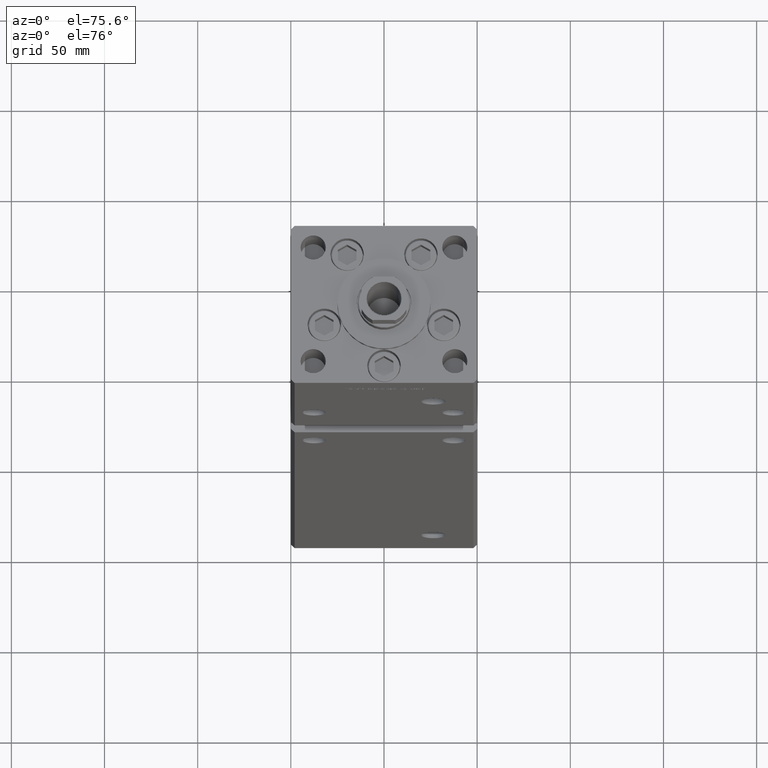
[diagram: clean part render]
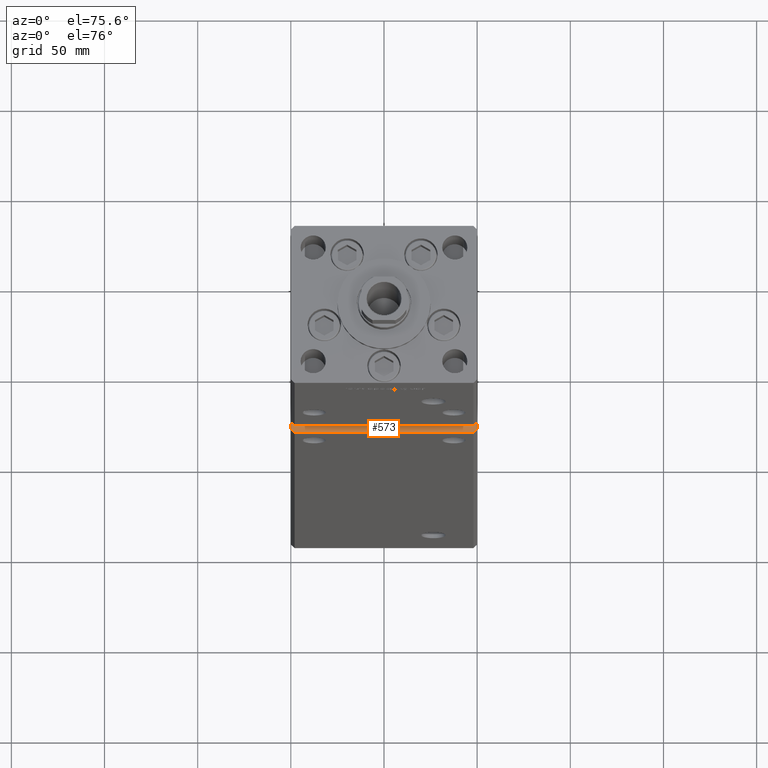
[diagram: same view with one face highlighted and labeled with its STEP entity id]
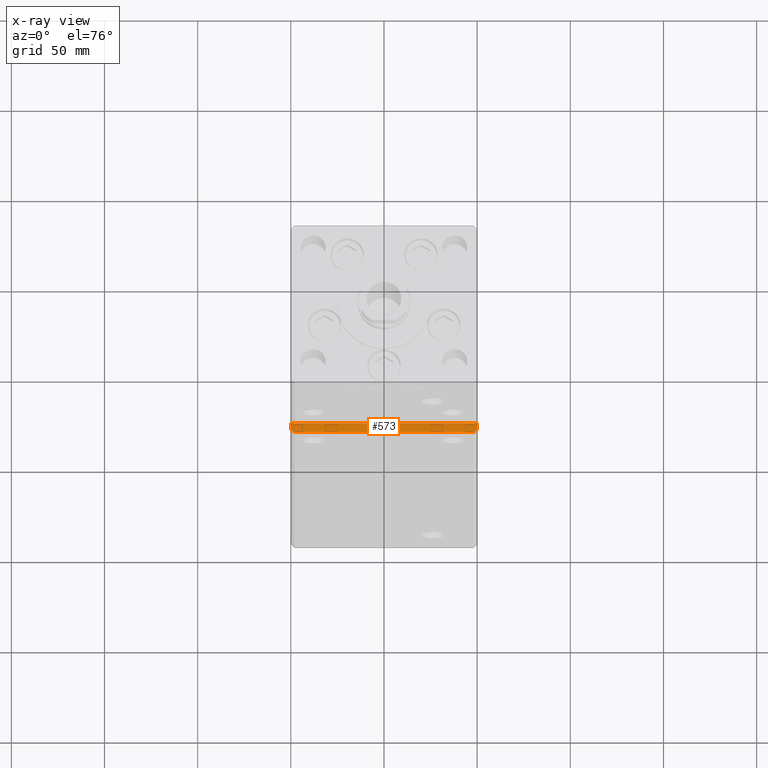
[diagram: x-ray of the same camera — body ghosted, the highlighted face saturated]
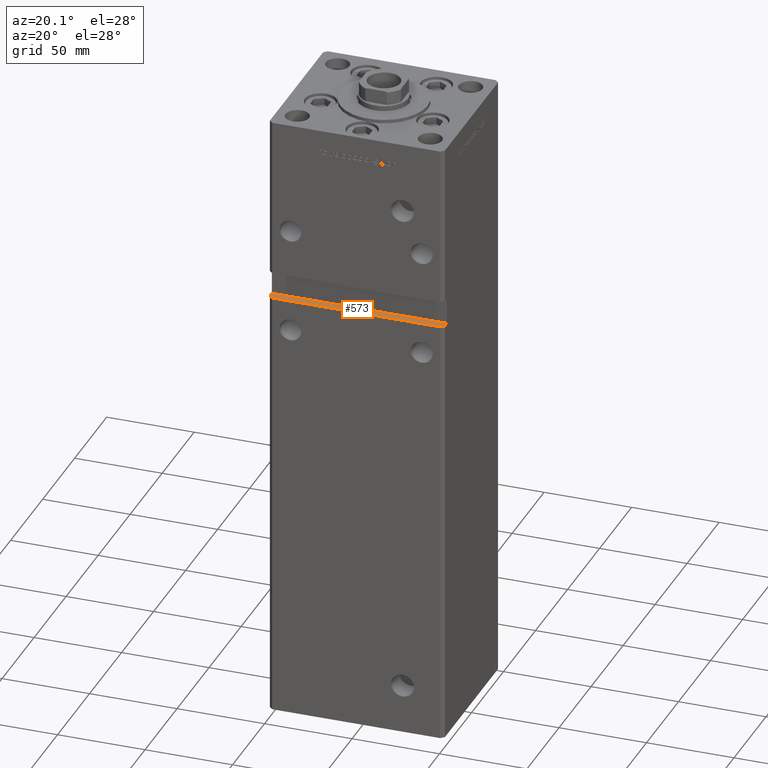
[diagram: same view with one face highlighted and labeled with its STEP entity id]
A machine part, auxiliary view. The second image highlights one B-rep face of the part: STEP entity #573.
The next image is the same camera in x-ray: the body ghosted, the highlighted face saturated — about 0% of this face is hidden behind the body in this view.
A second angle (auxiliary view) of the same face is appended — the face is thin or edge-on in the first view.
In plain terms, the highlighted planar face has unit normal (0, 0, -1).
Its self-contained STEP definition (entity closure, byte-faithful):
#573 = ADVANCED_FACE ( 'NONE', ( #8127 ), #36057, .F. ) ;
#617 = CARTESIAN_POINT ( 'NONE',  ( -47.99999999999998579, -43.50000000000000000, 230.9999999999999716 ) ) ;
#1837 = DIRECTION ( 'NONE',  ( 1.000000000000000000, 0.000000000000000000, 0.000000000000000000 ) ) ;
#5011 = VERTEX_POINT ( 'NONE', #45429 ) ;
#5103 = DIRECTION ( 'NONE',  ( -0.000000000000000000, -1.000000000000000000, -0.000000000000000000 ) ) ;
#5254 = CARTESIAN_POINT ( 'NONE',  ( -49.99999999999998579, -41.49999999999999289, 230.9999999999999716 ) ) ;
#5459 = CARTESIAN_POINT ( 'NONE',  ( 49.99999999999998579, -38.49999999999999289, 230.9999999999999716 ) ) ;
#7912 = EDGE_CURVE ( 'NONE', #24514, #42226, #29790, .T. ) ;
#8095 = VECTOR ( 'NONE', #10469, 1000.000000000000000 ) ;
#8127 = FACE_OUTER_BOUND ( 'NONE', #31992, .T. ) ;
#8277 = LINE ( 'NONE', #37270, #14954 ) ;
#8639 = VECTOR ( 'NONE', #36937, 1000.000000000000114 ) ;
#9829 = DIRECTION ( 'NONE',  ( -0.7071067811865474617, 0.7071067811865474617, 0.000000000000000000 ) ) ;
#10469 = DIRECTION ( 'NONE',  ( -0.000000000000000000, -1.000000000000000000, -0.000000000000000000 ) ) ;
#11462 = ORIENTED_EDGE ( 'NONE', *, *, #29077, .F. ) ;
#13437 = LINE ( 'NONE', #33311, #30257 ) ;
#13931 = ORIENTED_EDGE ( 'NONE', *, *, #39356, .T. ) ;
#14643 = ORIENTED_EDGE ( 'NONE', *, *, #7912, .T. ) ;
#14954 = VECTOR ( 'NONE', #44805, 1000.000000000000000 ) ;
#18515 = ORIENTED_EDGE ( 'NONE', *, *, #39570, .F. ) ;
#19414 = CARTESIAN_POINT ( 'NONE',  ( -49.99999999999998579, -38.50000000000000000, 230.9999999999999716 ) ) ;
#19669 = DIRECTION ( 'NONE',  ( -1.000000000000000000, 0.000000000000000000, -0.000000000000000000 ) ) ;
#20296 = LINE ( 'NONE', #24055, #8639 ) ;
#21580 = VERTEX_POINT ( 'NONE', #22185 ) ;
#22185 = CARTESIAN_POINT ( 'NONE',  ( 49.99999999999998579, -41.49999999999999289, 230.9999999999999716 ) ) ;
#24055 = CARTESIAN_POINT ( 'NONE',  ( 49.99999999999998579, -41.49999999999999289, 230.9999999999999716 ) ) ;
#24087 = EDGE_CURVE ( 'NONE', #42226, #21580, #20296, .T. ) ;
#24514 = VERTEX_POINT ( 'NONE', #617 ) ;
#24744 = DIRECTION ( 'NONE',  ( 0.000000000000000000, 0.000000000000000000, -1.000000000000000000 ) ) ;
#25194 = EDGE_CURVE ( 'NONE', #24514, #5011, #34529, .T. ) ;
#25846 = VECTOR ( 'NONE', #9829, 1000.000000000000114 ) ;
#29077 = EDGE_CURVE ( 'NONE', #30569, #21580, #13437, .T. ) ;
#29790 = LINE ( 'NONE', #49957, #43537 ) ;
#30257 = VECTOR ( 'NONE', #5103, 1000.000000000000000 ) ;
#30569 = VERTEX_POINT ( 'NONE', #5459 ) ;
#31992 = EDGE_LOOP ( 'NONE', ( #14643, #50564, #11462, #18515, #13931, #43166 ) ) ;
#33311 = CARTESIAN_POINT ( 'NONE',  ( 49.99999999999998579, -38.50000000000000000, 230.9999999999999716 ) ) ;
#34529 = LINE ( 'NONE', #5254, #25846 ) ;
#35434 = LINE ( 'NONE', #48326, #8095 ) ;
#36057 = PLANE ( 'NONE',  #39494 ) ;
#36937 = DIRECTION ( 'NONE',  ( 0.7071067811865474617, 0.7071067811865474617, 0.000000000000000000 ) ) ;
#37270 = CARTESIAN_POINT ( 'NONE',  ( -49.99999999999998579, -38.50000000000000000, 230.9999999999999716 ) ) ;
#38790 = VERTEX_POINT ( 'NONE', #50633 ) ;
#39356 = EDGE_CURVE ( 'NONE', #38790, #5011, #35434, .T. ) ;
#39494 = AXIS2_PLACEMENT_3D ( 'NONE', #19414, #24744, #19669 ) ;
#39570 = EDGE_CURVE ( 'NONE', #38790, #30569, #8277, .T. ) ;
#42226 = VERTEX_POINT ( 'NONE', #45256 ) ;
#43166 = ORIENTED_EDGE ( 'NONE', *, *, #25194, .F. ) ;
#43537 = VECTOR ( 'NONE', #1837, 1000.000000000000000 ) ;
#44805 = DIRECTION ( 'NONE',  ( 1.000000000000000000, 0.000000000000000000, 0.000000000000000000 ) ) ;
#45256 = CARTESIAN_POINT ( 'NONE',  ( 47.99999999999998579, -43.50000000000000000, 230.9999999999999716 ) ) ;
#45429 = CARTESIAN_POINT ( 'NONE',  ( -49.99999999999998579, -41.49999999999999289, 230.9999999999999716 ) ) ;
#48326 = CARTESIAN_POINT ( 'NONE',  ( -49.99999999999998579, -38.50000000000000000, 230.9999999999999716 ) ) ;
#49957 = CARTESIAN_POINT ( 'NONE',  ( -49.99999999999998579, -43.50000000000000000, 230.9999999999999716 ) ) ;
#50564 = ORIENTED_EDGE ( 'NONE', *, *, #24087, .T. ) ;
#50633 = CARTESIAN_POINT ( 'NONE',  ( -49.99999999999998579, -38.50000000000000000, 230.9999999999999716 ) ) ;